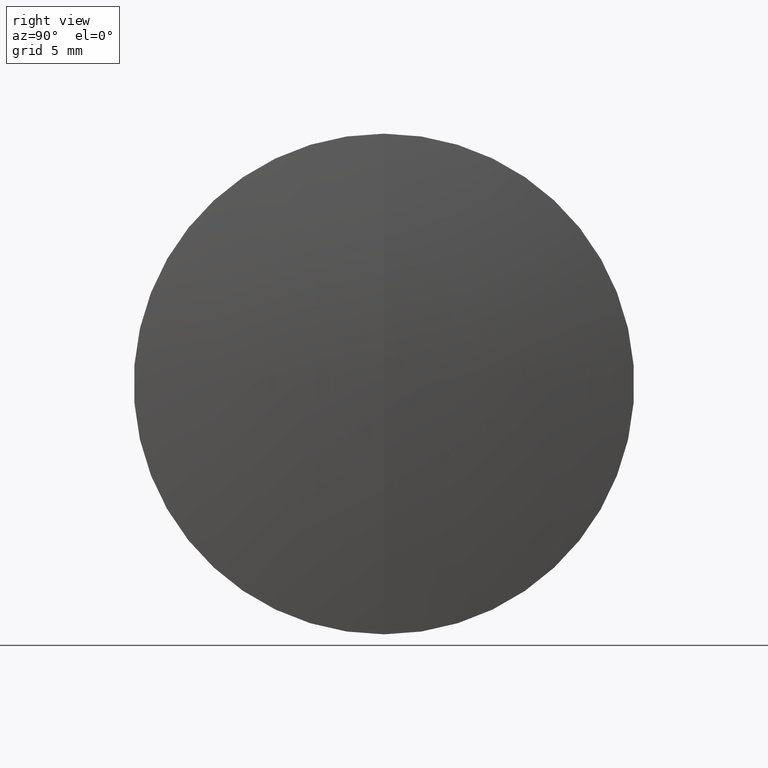
[diagram: clean part render]
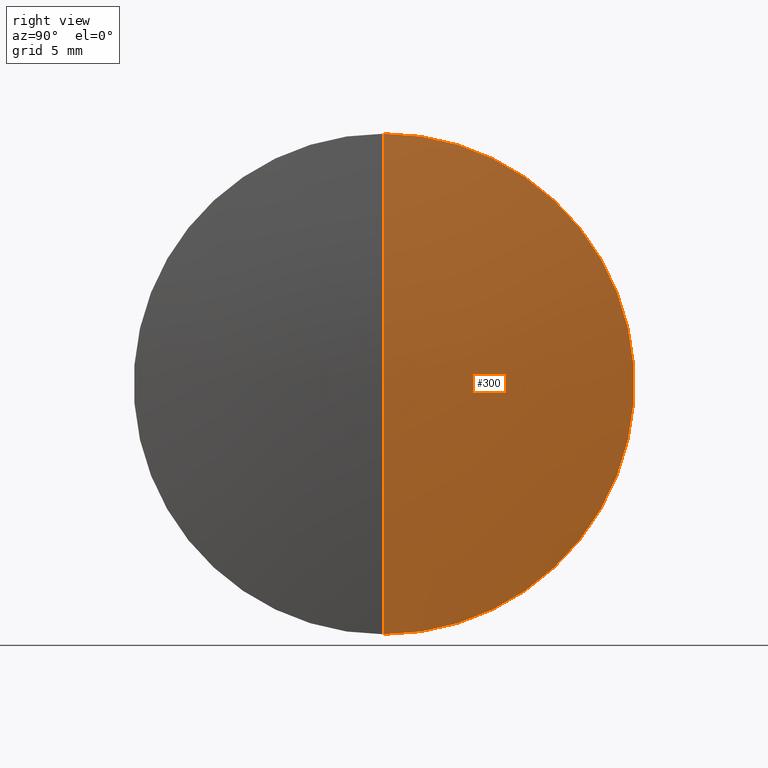
[diagram: same view with one face highlighted and labeled with its STEP entity id]
A machine part, right view. The second image highlights one B-rep face of the part: STEP entity #300.
In plain terms, the highlighted spherical surface has radius 95.5 mm.
Its self-contained STEP definition (entity closure, byte-faithful):
#13 = AXIS2_PLACEMENT_3D ( 'NONE', #302, #214, #212 ) ;
#29 = VERTEX_POINT ( 'NONE', #189 ) ;
#37 = ORIENTED_EDGE ( 'NONE', *, *, #193, .T. ) ;
#52 = VERTEX_POINT ( 'NONE', #127 ) ;
#57 = CIRCLE ( 'NONE', #13, 12.69999999999998900 ) ;
#92 = AXIS2_PLACEMENT_3D ( 'NONE', #253, #294, #316 ) ;
#103 = CARTESIAN_POINT ( 'NONE',  ( 151.9958458084194000, 0.0000000000000000000, 0.0000000000000000000 ) ) ;
#121 = CARTESIAN_POINT ( 'NONE',  ( 151.9958458084194000, 0.0000000000000000000, 0.0000000000000000000 ) ) ;
#127 = CARTESIAN_POINT ( 'NONE',  ( 246.6476286759386200, 1.555301434917137400E-015, -12.69999999999998900 ) ) ;
#147 = SPHERICAL_SURFACE ( 'NONE', #92, 95.50000000000001400 ) ;
#156 = DIRECTION ( 'NONE',  ( 0.0000000000000000000, -1.000000000000000000, 0.0000000000000000000 ) ) ;
#162 = AXIS2_PLACEMENT_3D ( 'NONE', #121, #165, #176 ) ;
#165 = DIRECTION ( 'NONE',  ( -0.0000000000000000000, 1.000000000000000000, 1.224646799147353200E-016 ) ) ;
#176 = DIRECTION ( 'NONE',  ( 0.0000000000000000000, -1.224646799147353200E-016, 1.000000000000000000 ) ) ;
#180 = CARTESIAN_POINT ( 'NONE',  ( 247.4958458084194300, 0.0000000000000000000, 5.847688465928612800E-015 ) ) ;
#189 = CARTESIAN_POINT ( 'NONE',  ( 246.6476286759386200, 0.0000000000000000000, 12.69999999999998900 ) ) ;
#193 = EDGE_CURVE ( 'NONE', #317, #52, #260, .T. ) ;
#212 = DIRECTION ( 'NONE',  ( 0.0000000000000000000, 0.0000000000000000000, 1.000000000000000000 ) ) ;
#214 = DIRECTION ( 'NONE',  ( -1.000000000000000000, -0.0000000000000000000, -0.0000000000000000000 ) ) ;
#228 = ORIENTED_EDGE ( 'NONE', *, *, #258, .F. ) ;
#241 = EDGE_CURVE ( 'NONE', #29, #52, #57, .T. ) ;
#253 = CARTESIAN_POINT ( 'NONE',  ( 151.9958458084194000, 0.0000000000000000000, 0.0000000000000000000 ) ) ;
#258 = EDGE_CURVE ( 'NONE', #317, #29, #338, .T. ) ;
#260 = CIRCLE ( 'NONE', #162, 95.50000000000001400 ) ;
#275 = ORIENTED_EDGE ( 'NONE', *, *, #241, .F. ) ;
#288 = EDGE_LOOP ( 'NONE', ( #228, #37, #275 ) ) ;
#294 = DIRECTION ( 'NONE',  ( 0.0000000000000000000, 1.000000000000000000, 0.0000000000000000000 ) ) ;
#297 = AXIS2_PLACEMENT_3D ( 'NONE', #103, #156, #324 ) ;
#300 = ADVANCED_FACE ( 'NONE', ( #325 ), #147, .T. ) ;
#302 = CARTESIAN_POINT ( 'NONE',  ( 246.6476286759386200, 0.0000000000000000000, 0.0000000000000000000 ) ) ;
#316 = DIRECTION ( 'NONE',  ( 0.0000000000000000000, 0.0000000000000000000, 1.000000000000000000 ) ) ;
#317 = VERTEX_POINT ( 'NONE', #180 ) ;
#324 = DIRECTION ( 'NONE',  ( 0.0000000000000000000, 0.0000000000000000000, -1.000000000000000000 ) ) ;
#325 = FACE_OUTER_BOUND ( 'NONE', #288, .T. ) ;
#338 = CIRCLE ( 'NONE', #297, 95.50000000000001400 ) ;